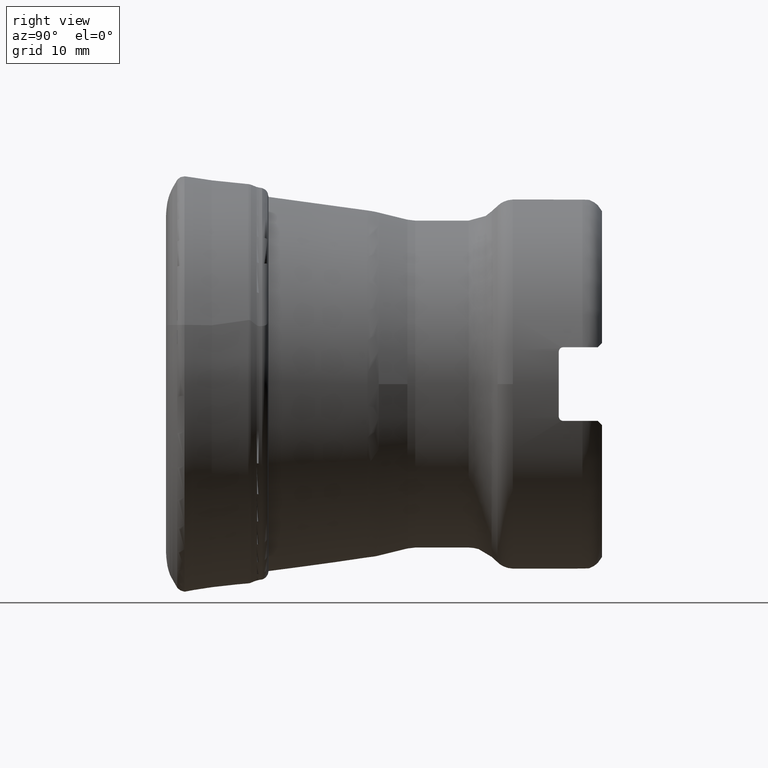
[diagram: clean part render]
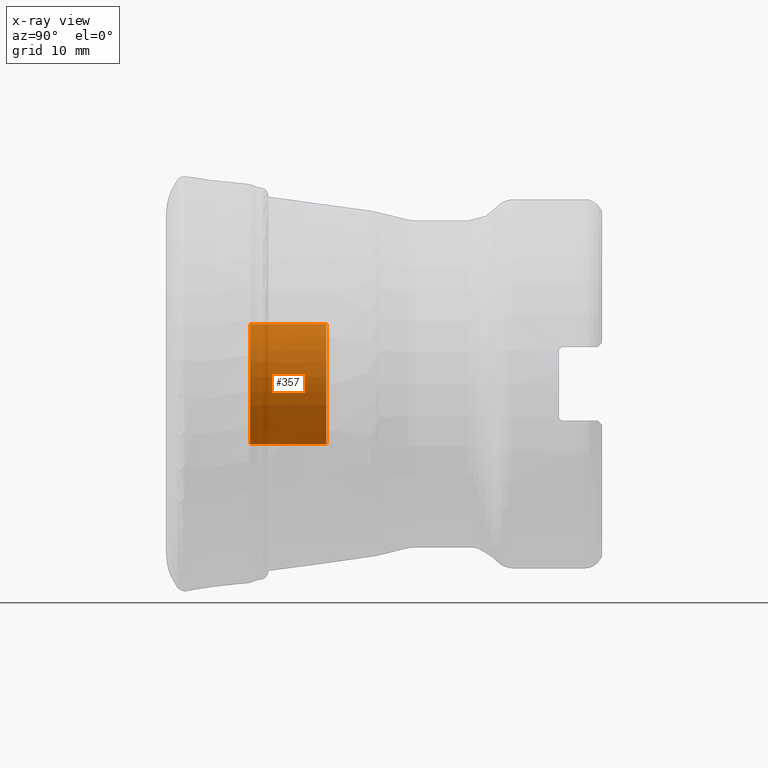
[diagram: x-ray — body ghosted, one internal face saturated and labeled with its STEP entity id]
A machine part, right view, then the same camera in x-ray: the body is ghosted and one INTERNAL B-rep face — a face not visible from any outside direction — is saturated and labeled: STEP entity #357.
In plain terms, the highlighted cylindrical surface (bore or boss wall) has radius 5.4991 mm, axis along (0, 1, 0).
Its self-contained STEP definition (entity closure, byte-faithful):
#346=CYLINDRICAL_SURFACE('',#1255,5.4991);
#357=ADVANCED_FACE('',(#449,#450),#346,.F.);
#449=FACE_BOUND('',#571,.T.);
#450=FACE_BOUND('',#572,.T.);
#571=EDGE_LOOP('',(#715));
#572=EDGE_LOOP('',(#716));
#715=ORIENTED_EDGE('',*,*,#1058,.T.);
#716=ORIENTED_EDGE('',*,*,#1059,.T.);
#957=VERTEX_POINT('',#1684);
#958=VERTEX_POINT('',#1686);
#1058=EDGE_CURVE('',#957,#957,#1179,.T.);
#1059=EDGE_CURVE('',#958,#958,#1180,.T.);
#1179=CIRCLE('',#1253,5.4991);
#1180=CIRCLE('',#1254,5.4991);
#1253=AXIS2_PLACEMENT_3D('',#1683,#1377,#1378);
#1254=AXIS2_PLACEMENT_3D('',#1685,#1379,#1380);
#1255=AXIS2_PLACEMENT_3D('',#1687,#1381,#1382);
#1377=DIRECTION('',(0.,-1.,0.));
#1378=DIRECTION('',(0.,0.,1.));
#1379=DIRECTION('',(0.,1.,0.));
#1380=DIRECTION('',(0.,0.,1.));
#1381=DIRECTION('',(0.,1.,0.));
#1382=DIRECTION('',(0.,0.,1.));
#1683=CARTESIAN_POINT('',(0.,7.7158938484435,0.));
#1684=CARTESIAN_POINT('',(0.,7.7158938484435,5.4991));
#1685=CARTESIAN_POINT('',(0.,14.705,0.));
#1686=CARTESIAN_POINT('',(0.,14.705,5.4991));
#1687=CARTESIAN_POINT('',(0.,40.205,0.));